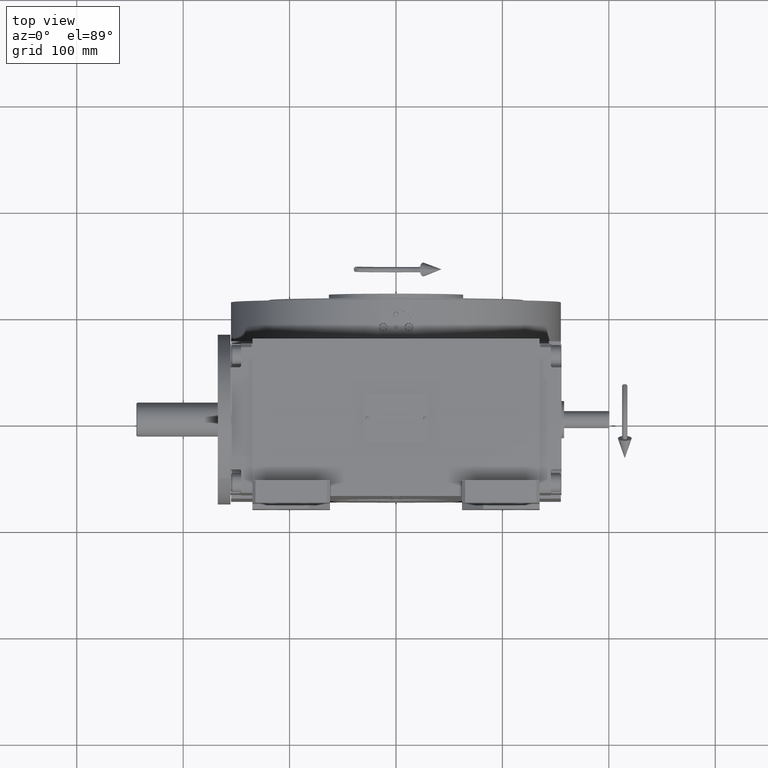
[diagram: clean part render]
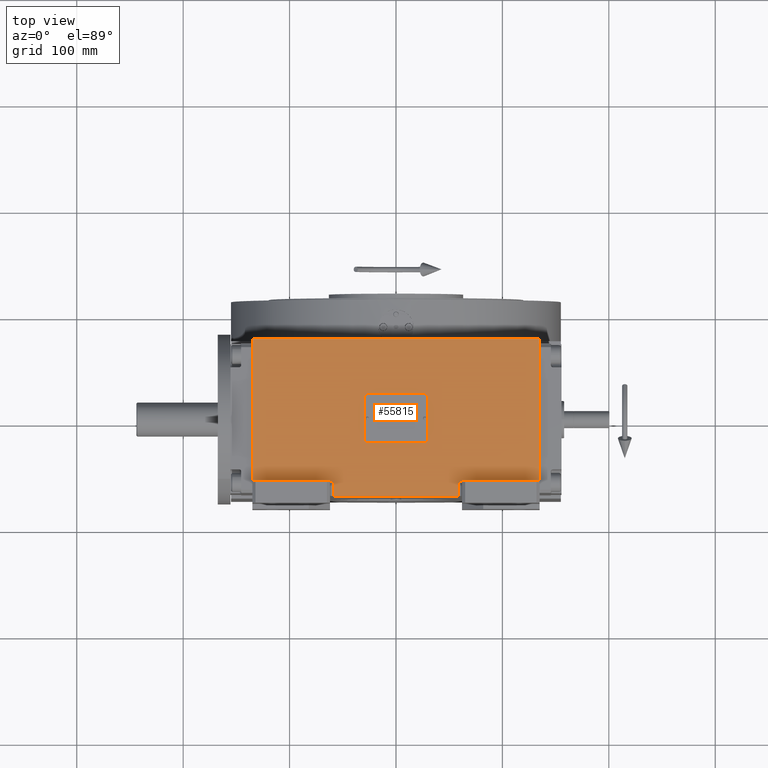
[diagram: same view with one face highlighted and labeled with its STEP entity id]
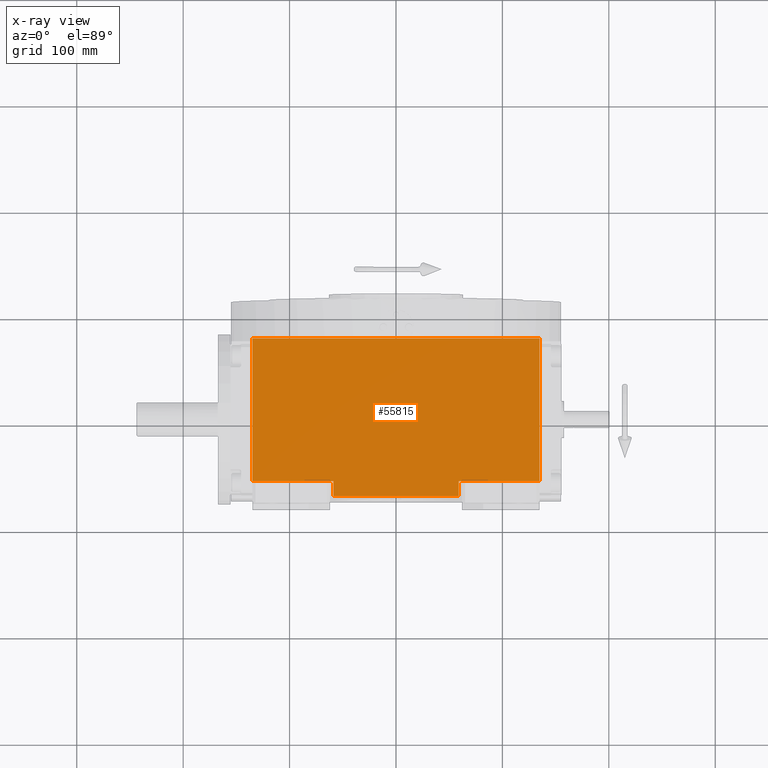
[diagram: x-ray of the same camera — body ghosted, the highlighted face saturated]
A machine part, top view. The second image highlights one B-rep face of the part: STEP entity #55815.
The next image is the same camera in x-ray: the body ghosted, the highlighted face saturated — about 0% of this face is hidden behind the body in this view.
In plain terms, the highlighted planar face has unit normal (0, 0, 1).
Its self-contained STEP definition (entity closure, byte-faithful):
#3993 = VECTOR ( 'NONE', #18204, 1000.000000000000000 ) ;
#4415 = ORIENTED_EDGE ( 'NONE', *, *, #42983, .T. ) ;
#4684 = VERTEX_POINT ( 'NONE', #15457 ) ;
#5204 = EDGE_CURVE ( 'NONE', #58627, #41322, #32423, .T. ) ;
#5661 = DIRECTION ( 'NONE',  ( 1.000000000000000000, 0.000000000000000000, 0.000000000000000000 ) ) ;
#6252 = CARTESIAN_POINT ( 'NONE',  ( -135.0000000000000000, -59.00000000000000000, 226.0000000000000000 ) ) ;
#6436 = CARTESIAN_POINT ( 'NONE',  ( -59.00000000000000000, -73.00000000000000000, 226.0000000000000000 ) ) ;
#7905 = LINE ( 'NONE', #35954, #52822 ) ;
#8892 = LINE ( 'NONE', #40892, #16491 ) ;
#9018 = DIRECTION ( 'NONE',  ( 1.000000000000000000, 0.000000000000000000, 0.000000000000000000 ) ) ;
#9239 = DIRECTION ( 'NONE',  ( 0.000000000000000000, 1.000000000000000000, 0.000000000000000000 ) ) ;
#9842 = CARTESIAN_POINT ( 'NONE',  ( -59.00000000000000000, -73.00000000000000000, 226.0000000000000000 ) ) ;
#12604 = ORIENTED_EDGE ( 'NONE', *, *, #68128, .T. ) ;
#13113 = VERTEX_POINT ( 'NONE', #58683 ) ;
#14185 = CARTESIAN_POINT ( 'NONE',  ( 59.00000000000000000, -73.00000000000000000, 226.0000000000000000 ) ) ;
#15457 = CARTESIAN_POINT ( 'NONE',  ( 59.00000000000000000, -59.00000000000000000, 226.0000000000000000 ) ) ;
#16491 = VECTOR ( 'NONE', #9239, 1000.000000000000000 ) ;
#18204 = DIRECTION ( 'NONE',  ( 0.000000000000000000, -1.000000000000000000, 0.000000000000000000 ) ) ;
#19986 = CARTESIAN_POINT ( 'NONE',  ( -59.00000000000000000, -59.00000000000000000, 226.0000000000000000 ) ) ;
#20207 = VERTEX_POINT ( 'NONE', #9842 ) ;
#20298 = DIRECTION ( 'NONE',  ( 0.000000000000000000, 1.000000000000000000, 0.000000000000000000 ) ) ;
#22423 = DIRECTION ( 'NONE',  ( 1.000000000000000000, 0.000000000000000000, 0.000000000000000000 ) ) ;
#22845 = ORIENTED_EDGE ( 'NONE', *, *, #68297, .T. ) ;
#23286 = LINE ( 'NONE', #6252, #63419 ) ;
#23596 = EDGE_LOOP ( 'NONE', ( #4415, #48792, #12604, #22845, #38552, #33542, #62841, #43884 ) ) ;
#27117 = VERTEX_POINT ( 'NONE', #28596 ) ;
#28596 = CARTESIAN_POINT ( 'NONE',  ( 135.0000000000000000, -59.00000000000000000, 226.0000000000000000 ) ) ;
#32423 = LINE ( 'NONE', #54118, #68044 ) ;
#32644 = VECTOR ( 'NONE', #22423, 1000.000000000000000 ) ;
#32650 = CARTESIAN_POINT ( 'NONE',  ( -135.0000000000000000, -73.00000000000000000, 226.0000000000000000 ) ) ;
#32905 = DIRECTION ( 'NONE',  ( 1.000000000000000000, 0.000000000000000000, 0.000000000000000000 ) ) ;
#33542 = ORIENTED_EDGE ( 'NONE', *, *, #5204, .F. ) ;
#33726 = VERTEX_POINT ( 'NONE', #19986 ) ;
#35944 = EDGE_CURVE ( 'NONE', #4684, #56518, #49896, .T. ) ;
#35954 = CARTESIAN_POINT ( 'NONE',  ( 59.00000000000000000, -59.00000000000000000, 226.0000000000000000 ) ) ;
#36311 = AXIS2_PLACEMENT_3D ( 'NONE', #32650, #54688, #5661 ) ;
#36553 = EDGE_CURVE ( 'NONE', #20207, #33726, #8892, .T. ) ;
#38074 = LINE ( 'NONE', #6436, #32644 ) ;
#38552 = ORIENTED_EDGE ( 'NONE', *, *, #66613, .F. ) ;
#40892 = CARTESIAN_POINT ( 'NONE',  ( -59.00000000000000000, -73.00000000000000000, 226.0000000000000000 ) ) ;
#41322 = VERTEX_POINT ( 'NONE', #43834 ) ;
#42983 = EDGE_CURVE ( 'NONE', #20207, #56518, #38074, .T. ) ;
#43834 = CARTESIAN_POINT ( 'NONE',  ( -135.0000000000000000, 75.00000000000000000, 226.0000000000000000 ) ) ;
#43884 = ORIENTED_EDGE ( 'NONE', *, *, #36553, .F. ) ;
#44704 = VECTOR ( 'NONE', #9018, 1000.000000000000000 ) ;
#45222 = CARTESIAN_POINT ( 'NONE',  ( -135.0000000000000000, -59.00000000000000000, 226.0000000000000000 ) ) ;
#47397 = LINE ( 'NONE', #47754, #44704 ) ;
#47754 = CARTESIAN_POINT ( 'NONE',  ( -135.0000000000000000, 75.00000000000000000, 226.0000000000000000 ) ) ;
#48666 = FACE_OUTER_BOUND ( 'NONE', #23596, .T. ) ;
#48792 = ORIENTED_EDGE ( 'NONE', *, *, #35944, .F. ) ;
#49711 = PLANE ( 'NONE',  #36311 ) ;
#49896 = LINE ( 'NONE', #55194, #3993 ) ;
#52822 = VECTOR ( 'NONE', #57255, 1000.000000000000000 ) ;
#54118 = CARTESIAN_POINT ( 'NONE',  ( -135.0000000000000000, -59.00000000000000000, 226.0000000000000000 ) ) ;
#54688 = DIRECTION ( 'NONE',  ( 0.000000000000000000, 0.000000000000000000, 1.000000000000000000 ) ) ;
#54758 = EDGE_CURVE ( 'NONE', #58627, #33726, #23286, .T. ) ;
#55194 = CARTESIAN_POINT ( 'NONE',  ( 59.00000000000000000, -59.00000000000000000, 226.0000000000000000 ) ) ;
#55815 = ADVANCED_FACE ( 'NONE', ( #48666 ), #49711, .T. ) ;
#56518 = VERTEX_POINT ( 'NONE', #14185 ) ;
#57255 = DIRECTION ( 'NONE',  ( 1.000000000000000000, 0.000000000000000000, 0.000000000000000000 ) ) ;
#58627 = VERTEX_POINT ( 'NONE', #45222 ) ;
#58645 = CARTESIAN_POINT ( 'NONE',  ( 135.0000000000000000, -59.00000000000000000, 226.0000000000000000 ) ) ;
#58683 = CARTESIAN_POINT ( 'NONE',  ( 135.0000000000000000, 75.00000000000000000, 226.0000000000000000 ) ) ;
#62841 = ORIENTED_EDGE ( 'NONE', *, *, #54758, .T. ) ;
#63419 = VECTOR ( 'NONE', #32905, 1000.000000000000000 ) ;
#64320 = LINE ( 'NONE', #58645, #67568 ) ;
#66613 = EDGE_CURVE ( 'NONE', #41322, #13113, #47397, .T. ) ;
#67568 = VECTOR ( 'NONE', #20298, 1000.000000000000000 ) ;
#68044 = VECTOR ( 'NONE', #69039, 1000.000000000000000 ) ;
#68128 = EDGE_CURVE ( 'NONE', #4684, #27117, #7905, .T. ) ;
#68297 = EDGE_CURVE ( 'NONE', #27117, #13113, #64320, .T. ) ;
#69039 = DIRECTION ( 'NONE',  ( 0.000000000000000000, 1.000000000000000000, 0.000000000000000000 ) ) ;